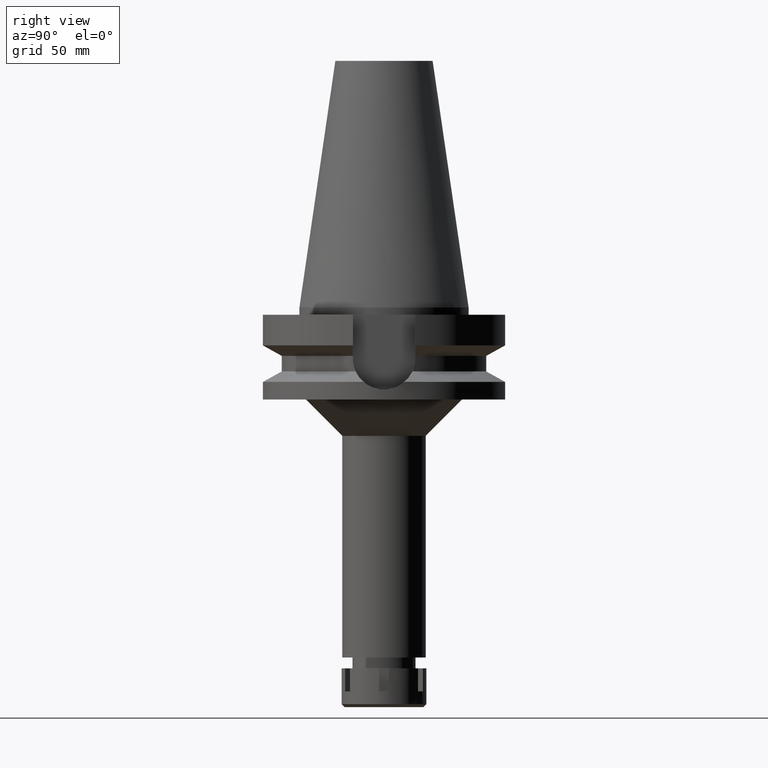
[diagram: clean part render]
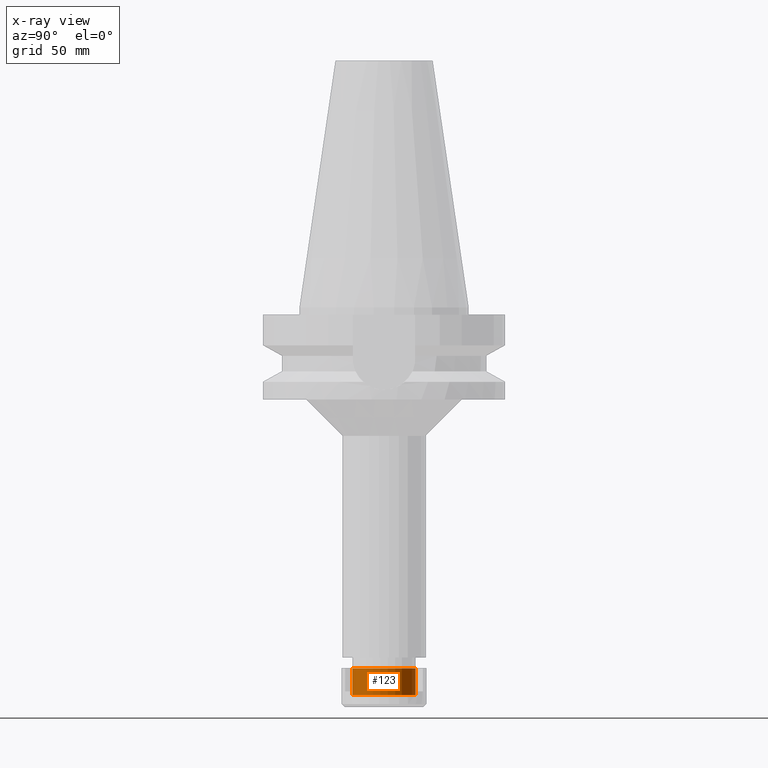
[diagram: x-ray — body ghosted, one internal face saturated and labeled with its STEP entity id]
A machine part, right view, then the same camera in x-ray: the body is ghosted and one INTERNAL B-rep face — a face not visible from any outside direction — is saturated and labeled: STEP entity #123.
In plain terms, the highlighted cylindrical surface (edge-blend (fillet) strip) has radius 13 mm, axis along (0, 0, -1).
Its self-contained STEP definition (entity closure, byte-faithful):
#123 = ADVANCED_FACE ( 'NONE', ( #605 ), #2029, .F. ) ;
#125 = EDGE_CURVE ( 'NONE', #1263, #2095, #2850, .T. ) ;
#190 = DIRECTION ( 'NONE',  ( 0.0000000000000000000, 1.000000000000000000, 0.0000000000000000000 ) ) ;
#230 = CARTESIAN_POINT ( 'NONE',  ( 0.0000000000000000000, 13.00000000000000000, -11.00000000000000000 ) ) ;
#506 = VECTOR ( 'NONE', #2941, 1000.000000000000000 ) ;
#605 = FACE_OUTER_BOUND ( 'NONE', #1391, .T. ) ;
#750 = AXIS2_PLACEMENT_3D ( 'NONE', #2178, #1661, #190 ) ;
#784 = EDGE_CURVE ( 'NONE', #2940, #2664, #2919, .T. ) ;
#1159 = VECTOR ( 'NONE', #2387, 1000.000000000000000 ) ;
#1263 = VERTEX_POINT ( 'NONE', #3166 ) ;
#1277 = ORIENTED_EDGE ( 'NONE', *, *, #784, .T. ) ;
#1391 = EDGE_LOOP ( 'NONE', ( #1277, #3557, #2459, #2785 ) ) ;
#1436 = DIRECTION ( 'NONE',  ( 0.0000000000000000000, -1.000000000000000000, 0.0000000000000000000 ) ) ;
#1486 = CARTESIAN_POINT ( 'NONE',  ( 0.0000000000000000000, -13.00000000000000000, -11.00000000000000000 ) ) ;
#1661 = DIRECTION ( 'NONE',  ( 0.0000000000000000000, 0.0000000000000000000, -1.000000000000000000 ) ) ;
#1782 = DIRECTION ( 'NONE',  ( 0.0000000000000000000, 0.0000000000000000000, -1.000000000000000000 ) ) ;
#1798 = CARTESIAN_POINT ( 'NONE',  ( 0.0000000000000000000, 0.0000000000000000000, 0.0000000000000000000 ) ) ;
#2029 = CYLINDRICAL_SURFACE ( 'NONE', #3673, 13.00000000000000000 ) ;
#2090 = DIRECTION ( 'NONE',  ( 0.0000000000000000000, 0.0000000000000000000, 1.000000000000000000 ) ) ;
#2095 = VERTEX_POINT ( 'NONE', #2862 ) ;
#2178 = CARTESIAN_POINT ( 'NONE',  ( 0.0000000000000000000, 0.0000000000000000000, -11.00000000000000000 ) ) ;
#2289 = CARTESIAN_POINT ( 'NONE',  ( 0.0000000000000000000, 0.0000000000000000000, 0.0000000000000000000 ) ) ;
#2293 = EDGE_CURVE ( 'NONE', #2940, #2095, #2961, .T. ) ;
#2385 = EDGE_CURVE ( 'NONE', #2664, #1263, #3173, .T. ) ;
#2387 = DIRECTION ( 'NONE',  ( 0.0000000000000000000, 0.0000000000000000000, 1.000000000000000000 ) ) ;
#2459 = ORIENTED_EDGE ( 'NONE', *, *, #125, .T. ) ;
#2635 = CARTESIAN_POINT ( 'NONE',  ( 0.0000000000000000000, -13.00000000000000000, -11.00000000000000000 ) ) ;
#2664 = VERTEX_POINT ( 'NONE', #1486 ) ;
#2785 = ORIENTED_EDGE ( 'NONE', *, *, #2293, .F. ) ;
#2850 = CIRCLE ( 'NONE', #3090, 13.00000000000000000 ) ;
#2862 = CARTESIAN_POINT ( 'NONE',  ( 0.0000000000000000000, 13.00000000000000000, 0.0000000000000000000 ) ) ;
#2919 = CIRCLE ( 'NONE', #750, 13.00000000000000000 ) ;
#2932 = DIRECTION ( 'NONE',  ( 0.0000000000000000000, -1.000000000000000000, 0.0000000000000000000 ) ) ;
#2940 = VERTEX_POINT ( 'NONE', #230 ) ;
#2941 = DIRECTION ( 'NONE',  ( 0.0000000000000000000, 0.0000000000000000000, 1.000000000000000000 ) ) ;
#2961 = LINE ( 'NONE', #3516, #1159 ) ;
#3090 = AXIS2_PLACEMENT_3D ( 'NONE', #1798, #2090, #1436 ) ;
#3166 = CARTESIAN_POINT ( 'NONE',  ( 0.0000000000000000000, -13.00000000000000000, 0.0000000000000000000 ) ) ;
#3173 = LINE ( 'NONE', #2635, #506 ) ;
#3516 = CARTESIAN_POINT ( 'NONE',  ( 0.0000000000000000000, 13.00000000000000000, -11.00000000000000000 ) ) ;
#3557 = ORIENTED_EDGE ( 'NONE', *, *, #2385, .T. ) ;
#3673 = AXIS2_PLACEMENT_3D ( 'NONE', #2289, #1782, #2932 ) ;